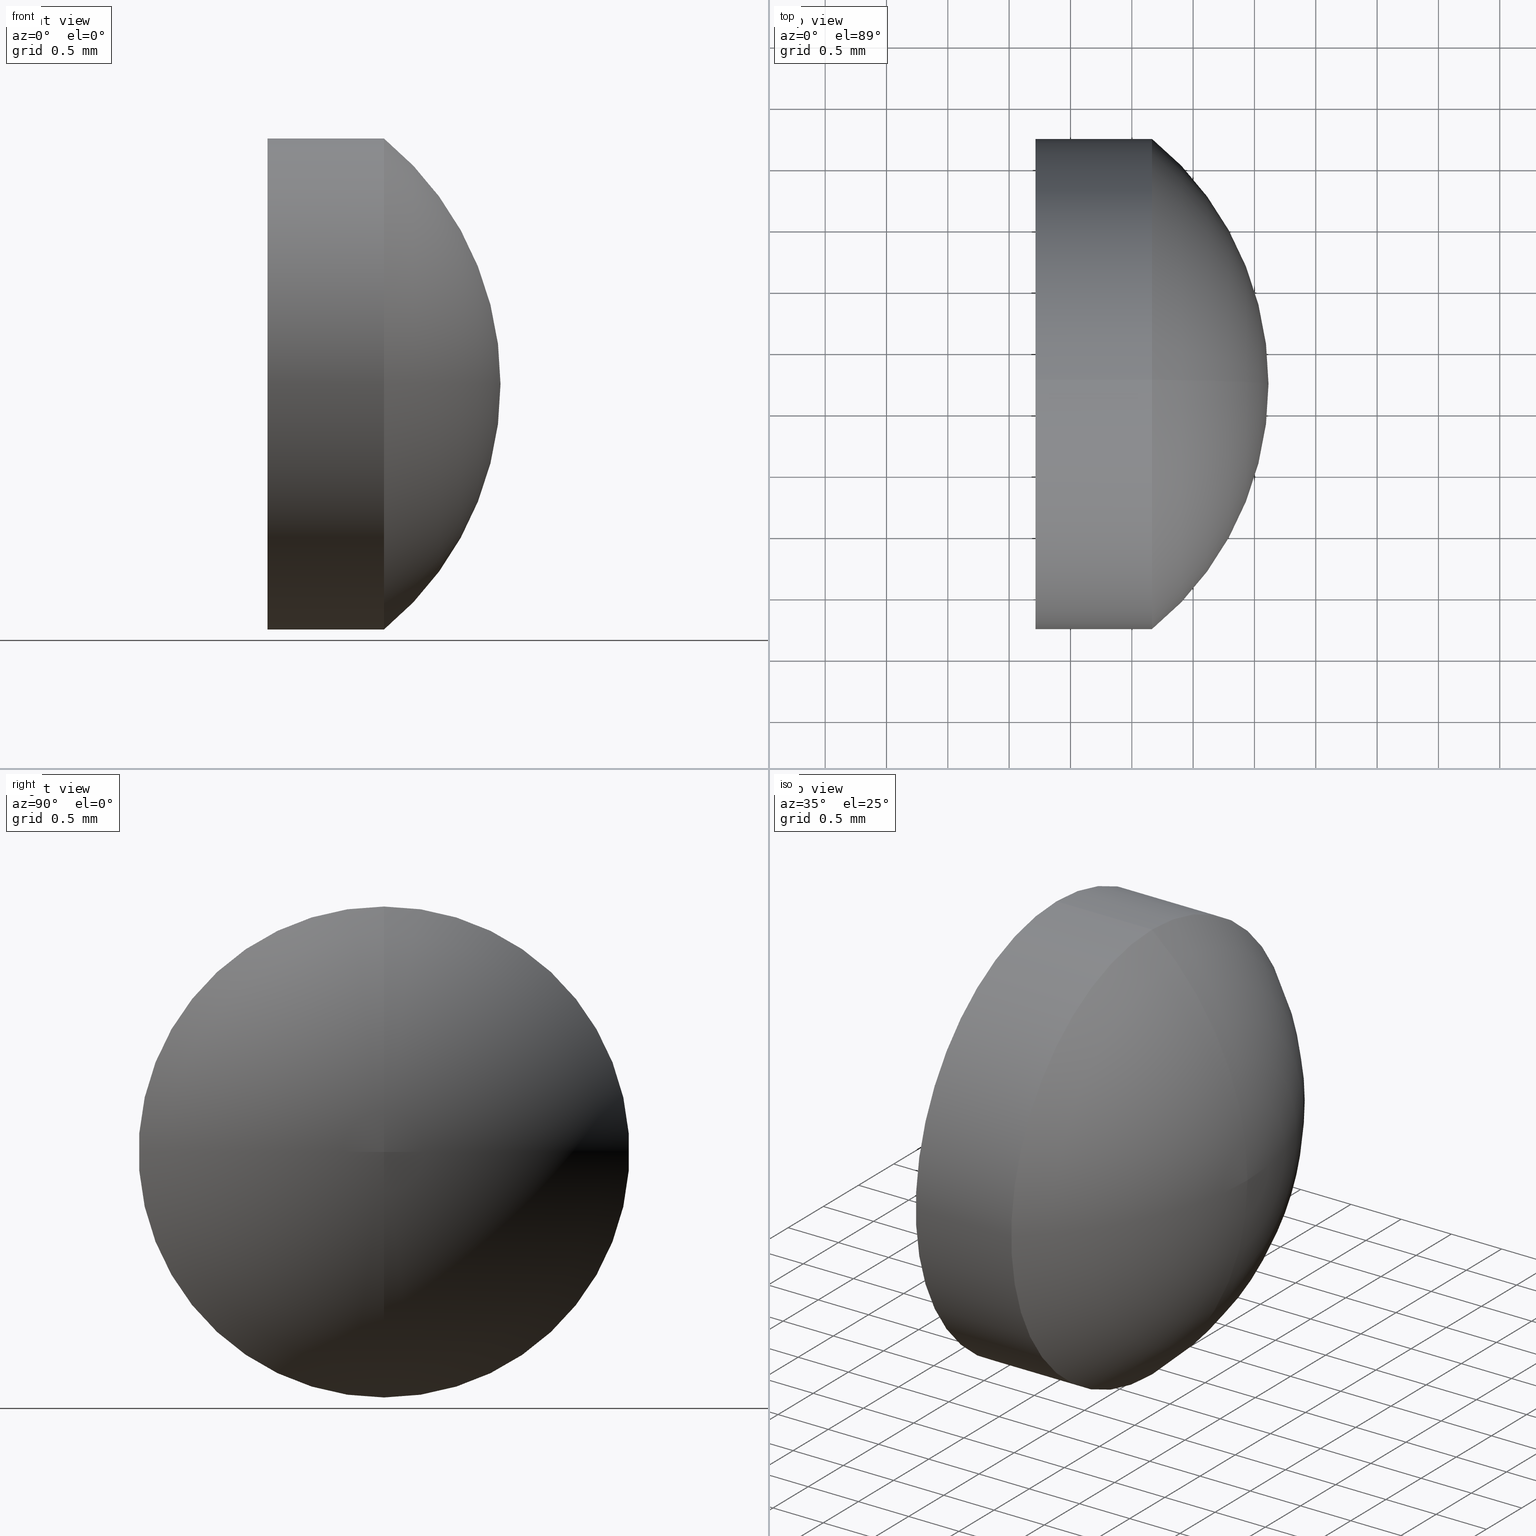
[diagram: canonical four-view strip — front | top / right | iso, engineering-drawing reading convention]
A machine part, canonical four-view strip (front | top / right | iso — engineering-drawing reading convention). The complete STEP part file that produces these views, byte-faithful:
ISO-10303-21;
HEADER;
FILE_DESCRIPTION (( 'STEP AP214' ),
    '1' );
FILE_NAME ('100174.STEP',
    '2019-05-17T07:43:43',
    ( '' ),
    ( '' ),
    'SwSTEP 2.0',
    'SolidWorks 2016',
    '' );
FILE_SCHEMA (( 'AUTOMOTIVE_DESIGN' ));
ENDSEC;

DATA;
#1 = CYLINDRICAL_SURFACE ( 'NONE', #136, 2.001348738342852300 ) ;
#2 = AXIS2_PLACEMENT_3D ( 'NONE', #134, #108, #67 ) ;
#3 = ADVANCED_FACE ( 'NONE', ( #72 ), #1, .T. ) ;
#4 = LINE ( 'NONE', #83, #10 ) ;
#5 = STYLED_ITEM ( 'NONE', ( #155 ), #52 ) ;
#6 = SURFACE_STYLE_USAGE ( .BOTH. , #127 ) ;
#7 = DIRECTION ( 'NONE',  ( 0.0000000000000000000, 0.0000000000000000000, -1.000000000000000000 ) ) ;
#8 = CLOSED_SHELL ( 'NONE', ( #3, #91, #124, #17, #54 ) ) ;
#9 = DIRECTION ( 'NONE',  ( 1.000000000000000000, 0.0000000000000000000, 0.0000000000000000000 ) ) ;
#10 = VECTOR ( 'NONE', #105, 1000.000000000000000 ) ;
#11 = MECHANICAL_DESIGN_GEOMETRIC_PRESENTATION_REPRESENTATION (  '', ( #139 ), #70 ) ;
#12 = EDGE_CURVE ( 'NONE', #79, #28, #96, .T. ) ;
#13 = PRODUCT_DEFINITION_SHAPE ( 'NONE', 'NONE',  #97 ) ;
#14 = DIRECTION ( 'NONE',  ( 0.0000000000000000000, 0.0000000000000000000, 1.000000000000000000 ) ) ;
#15 = ORIENTED_EDGE ( 'NONE', *, *, #143, .T. ) ;
#16 = FILL_AREA_STYLE_COLOUR ( '', #34 ) ;
#17 = ADVANCED_FACE ( 'NONE', ( #60 ), #126, .T. ) ;
#18 =( LENGTH_UNIT ( ) NAMED_UNIT ( * ) SI_UNIT ( .MILLI., .METRE. ) );
#19 = PRODUCT ( '100174', '100174', '', ( #102 ) ) ;
#20 = DIRECTION ( 'NONE',  ( 1.000000000000000000, 0.0000000000000000000, 0.0000000000000000000 ) ) ;
#21 = PRESENTATION_LAYER_ASSIGNMENT (  '', '', ( #139 ) ) ;
#22 = APPLICATION_CONTEXT ( 'automotive_design' ) ;
#23 = ORIENTED_EDGE ( 'NONE', *, *, #152, .T. ) ;
#24 = DIRECTION ( 'NONE',  ( 0.0000000000000000000, 0.0000000000000000000, 1.000000000000000000 ) ) ;
#25 =( NAMED_UNIT ( * ) PLANE_ANGLE_UNIT ( ) SI_UNIT ( $, .RADIAN. ) );
#26 = AXIS2_PLACEMENT_3D ( 'NONE', #66, #161, #45 ) ;
#27 = VECTOR ( 'NONE', #74, 1000.000000000000000 ) ;
#28 = VERTEX_POINT ( 'NONE', #141 ) ;
#29 = UNCERTAINTY_MEASURE_WITH_UNIT (LENGTH_MEASURE( 1.000000000000000100E-005 ), #162, 'distance_accuracy_value', 'NONE');
#30 = AXIS2_PLACEMENT_3D ( 'NONE', #63, #156, #77 ) ;
#31 = PRODUCT_DEFINITION_CONTEXT ( 'detailed design', #118, 'design' ) ;
#32 = AXIS2_PLACEMENT_3D ( 'NONE', #103, #65, #41 ) ;
#33 = DIRECTION ( 'NONE',  ( 0.0000000000000000000, 0.0000000000000000000, 1.000000000000000000 ) ) ;
#34 = COLOUR_RGB ( '',1.000000000000000000, 1.000000000000000000, 1.000000000000000000 ) ;
#35 = ORIENTED_EDGE ( 'NONE', *, *, #111, .T. ) ;
#36 = FACE_OUTER_BOUND ( 'NONE', #90, .T. ) ;
#37 = AXIS2_PLACEMENT_3D ( 'NONE', #119, #133, #78 ) ;
#38 = DIRECTION ( 'NONE',  ( -1.000000000000000000, -0.0000000000000000000, -0.0000000000000000000 ) ) ;
#39 = ORIENTED_EDGE ( 'NONE', *, *, #46, .F. ) ;
#40 = DIRECTION ( 'NONE',  ( 0.0000000000000000000, 0.0000000000000000000, 1.000000000000000000 ) ) ;
#41 = DIRECTION ( 'NONE',  ( 0.0000000000000000000, 0.0000000000000000000, 1.000000000000000000 ) ) ;
#42 =( LENGTH_UNIT ( ) NAMED_UNIT ( * ) SI_UNIT ( .MILLI., .METRE. ) );
#43 = EDGE_LOOP ( 'NONE', ( #23, #35, #58, #39 ) ) ;
#44 = CIRCLE ( 'NONE', #30, 2.001348738342852300 ) ;
#45 = DIRECTION ( 'NONE',  ( 0.0000000000000000000, 0.0000000000000000000, -1.000000000000000000 ) ) ;
#46 = EDGE_CURVE ( 'NONE', #28, #71, #151, .T. ) ;
#47 =( GEOMETRIC_REPRESENTATION_CONTEXT ( 3 ) GLOBAL_UNCERTAINTY_ASSIGNED_CONTEXT ( ( #29 ) ) GLOBAL_UNIT_ASSIGNED_CONTEXT ( ( #162, #25, #82 ) ) REPRESENTATION_CONTEXT ( 'NONE', 'WORKASPACE' ) );
#48 = SHAPE_DEFINITION_REPRESENTATION ( #13, #80 ) ;
#49 = ORIENTED_EDGE ( 'NONE', *, *, #53, .F. ) ;
#50 = EDGE_LOOP ( 'NONE', ( #149, #51, #153, #49 ) ) ;
#51 = ORIENTED_EDGE ( 'NONE', *, *, #12, .T. ) ;
#52 = MANIFOLD_SOLID_BREP ( '��ת2', #8 ) ;
#53 = EDGE_CURVE ( 'NONE', #110, #71, #44, .T. ) ;
#54 = ADVANCED_FACE ( 'NONE', ( #36 ), #92, .F. ) ;
#55 = AXIS2_PLACEMENT_3D ( 'NONE', #95, #121, #24 ) ;
#56 = FILL_AREA_STYLE ('',( #68 ) ) ;
#57 = APPLICATION_PROTOCOL_DEFINITION ( 'draft international standard', 'automotive_design', 1998, #118 ) ;
#58 = ORIENTED_EDGE ( 'NONE', *, *, #143, .F. ) ;
#59 = CARTESIAN_POINT ( 'NONE',  ( 386.6647637488533200, -62.77572471947115700, 0.0000000000000000000 ) ) ;
#60 = FACE_OUTER_BOUND ( 'NONE', #50, .T. ) ;
#61 = AXIS2_PLACEMENT_3D ( 'NONE', #59, #69, #164 ) ;
#62 = TOROIDAL_SURFACE ( 'NONE', #55, 0.001348738342871191900, 2.580263157894727900 ) ;
#63 = CARTESIAN_POINT ( 'NONE',  ( 385.7147637488533300, -62.77572471947115700, 0.0000000000000000000 ) ) ;
#64 = SURFACE_STYLE_USAGE ( .BOTH. , #84 ) ;
#65 = DIRECTION ( 'NONE',  ( -1.000000000000000000, -0.0000000000000000000, -0.0000000000000000000 ) ) ;
#66 = CARTESIAN_POINT ( 'NONE',  ( 385.0345005909586000, -62.77572471947115700, 0.001348738342871191900 ) ) ;
#67 = DIRECTION ( 'NONE',  ( 0.0000000000000000000, 0.0000000000000000000, 1.000000000000000000 ) ) ;
#68 = FILL_AREA_STYLE_COLOUR ( '', #85 ) ;
#69 = DIRECTION ( 'NONE',  ( -1.000000000000000000, -0.0000000000000000000, -0.0000000000000000000 ) ) ;
#70 =( GEOMETRIC_REPRESENTATION_CONTEXT ( 3 ) GLOBAL_UNCERTAINTY_ASSIGNED_CONTEXT ( ( #160 ) ) GLOBAL_UNIT_ASSIGNED_CONTEXT ( ( #42, #132, #117 ) ) REPRESENTATION_CONTEXT ( 'NONE', 'WORKASPACE' ) );
#71 = VERTEX_POINT ( 'NONE', #93 ) ;
#72 = FACE_OUTER_BOUND ( 'NONE', #43, .T. ) ;
#73 = CIRCLE ( 'NONE', #26, 2.580263157894727900 ) ;
#74 = DIRECTION ( 'NONE',  ( -1.000000000000000000, -0.0000000000000000000, -0.0000000000000000000 ) ) ;
#75 = ORIENTED_EDGE ( 'NONE', *, *, #104, .F. ) ;
#76 = CARTESIAN_POINT ( 'NONE',  ( 385.0345005909586000, -62.77572471947115700, 0.0000000000000000000 ) ) ;
#77 = DIRECTION ( 'NONE',  ( 0.0000000000000000000, 0.0000000000000000000, 1.000000000000000000 ) ) ;
#78 = DIRECTION ( 'NONE',  ( 0.0000000000000000000, 0.0000000000000000000, 1.000000000000000000 ) ) ;
#79 = VERTEX_POINT ( 'NONE', #89 ) ;
#80 = ADVANCED_BREP_SHAPE_REPRESENTATION ( '100174', ( #52, #116 ), #47 ) ;
#81 = CARTESIAN_POINT ( 'NONE',  ( 385.7147637488533300, -62.77572471947115700, -2.001348738342852300 ) ) ;
#82 =( NAMED_UNIT ( * ) SI_UNIT ( $, .STERADIAN. ) SOLID_ANGLE_UNIT ( ) );
#83 = CARTESIAN_POINT ( 'NONE',  ( 385.3161618597546900, -62.77572471947115700, -2.001348738342852300 ) ) ;
#84 = SURFACE_SIDE_STYLE ('',( #166 ) ) ;
#85 = COLOUR_RGB ( '',1.000000000000000000, 1.000000000000000000, 1.000000000000000000 ) ;
#86 = EDGE_LOOP ( 'NONE', ( #75, #122, #114 ) ) ;
#87 = SURFACE_STYLE_FILL_AREA ( #158 ) ;
#88 =( GEOMETRIC_REPRESENTATION_CONTEXT ( 3 ) GLOBAL_UNCERTAINTY_ASSIGNED_CONTEXT ( ( #142 ) ) GLOBAL_UNIT_ASSIGNED_CONTEXT ( ( #18, #130, #100 ) ) REPRESENTATION_CONTEXT ( 'NONE', 'WORKASPACE' ) );
#89 = CARTESIAN_POINT ( 'NONE',  ( 386.6647637488533200, -62.77572471947115700, -2.001348738342863400 ) ) ;
#90 = EDGE_LOOP ( 'NONE', ( #15, #137 ) ) ;
#91 = ADVANCED_FACE ( 'NONE', ( #99 ), #106, .T. ) ;
#92 = PLANE ( 'NONE',  #157 ) ;
#93 = CARTESIAN_POINT ( 'NONE',  ( 385.7147637488533300, -62.77572471947115700, 2.001348738342852300 ) ) ;
#94 = CARTESIAN_POINT ( 'NONE',  ( 0.0000000000000000000, 0.0000000000000000000, 0.0000000000000000000 ) ) ;
#95 = CARTESIAN_POINT ( 'NONE',  ( 385.0345005909586000, -62.77572471947115700, 0.0000000000000000000 ) ) ;
#96 = CIRCLE ( 'NONE', #32, 2.001348738342852300 ) ;
#97 = PRODUCT_DEFINITION ( 'δ֪', '', #101, #31 ) ;
#98 = CIRCLE ( 'NONE', #2, 2.001348738342852300 ) ;
#99 = FACE_OUTER_BOUND ( 'NONE', #86, .T. ) ;
#100 =( NAMED_UNIT ( * ) SI_UNIT ( $, .STERADIAN. ) SOLID_ANGLE_UNIT ( ) );
#101 = PRODUCT_DEFINITION_FORMATION_WITH_SPECIFIED_SOURCE ( '�κ�', '', #19, .NOT_KNOWN. ) ;
#102 = PRODUCT_CONTEXT ( 'NONE', #22, 'mechanical' ) ;
#103 = CARTESIAN_POINT ( 'NONE',  ( 386.6647637488533200, -62.77572471947115700, 0.0000000000000000000 ) ) ;
#104 = EDGE_CURVE ( 'NONE', #109, #28, #73, .T. ) ;
#105 = DIRECTION ( 'NONE',  ( -1.000000000000000000, -0.0000000000000000000, -0.0000000000000000000 ) ) ;
#106 = TOROIDAL_SURFACE ( 'NONE', #165, 0.001348738342871191900, 2.580263157894727900 ) ;
#107 = AXIS2_PLACEMENT_3D ( 'NONE', #146, #125, #33 ) ;
#108 = DIRECTION ( 'NONE',  ( -1.000000000000000000, -0.0000000000000000000, -0.0000000000000000000 ) ) ;
#109 = VERTEX_POINT ( 'NONE', #163 ) ;
#110 = VERTEX_POINT ( 'NONE', #81 ) ;
#111 = EDGE_CURVE ( 'NONE', #79, #110, #4, .T. ) ;
#112 = PRODUCT_RELATED_PRODUCT_CATEGORY ( 'part', '', ( #19 ) ) ;
#113 = DIRECTION ( 'NONE',  ( -1.000000000000000000, -0.0000000000000000000, -0.0000000000000000000 ) ) ;
#114 = ORIENTED_EDGE ( 'NONE', *, *, #152, .F. ) ;
#115 = CARTESIAN_POINT ( 'NONE',  ( 385.3161618597546900, -62.77572471947115700, 2.001348738342852300 ) ) ;
#116 = AXIS2_PLACEMENT_3D ( 'NONE', #94, #40, #9 ) ;
#117 =( NAMED_UNIT ( * ) SI_UNIT ( $, .STERADIAN. ) SOLID_ANGLE_UNIT ( ) );
#118 = APPLICATION_CONTEXT ( 'automotive_design' ) ;
#119 = CARTESIAN_POINT ( 'NONE',  ( 385.3161618597546900, -62.77572471947115700, 0.0000000000000000000 ) ) ;
#120 = ORIENTED_EDGE ( 'NONE', *, *, #104, .T. ) ;
#121 = DIRECTION ( 'NONE',  ( -1.000000000000000000, -0.0000000000000000000, -0.0000000000000000000 ) ) ;
#122 = ORIENTED_EDGE ( 'NONE', *, *, #128, .T. ) ;
#123 = CARTESIAN_POINT ( 'NONE',  ( 385.3161618597546900, -62.77572471947115700, 0.0000000000000000000 ) ) ;
#124 = ADVANCED_FACE ( 'NONE', ( #144 ), #62, .T. ) ;
#125 = DIRECTION ( 'NONE',  ( -0.0000000000000000000, 1.000000000000000000, 1.224646799147353200E-016 ) ) ;
#126 = CYLINDRICAL_SURFACE ( 'NONE', #37, 2.001348738342852300 ) ;
#127 = SURFACE_SIDE_STYLE ('',( #87 ) ) ;
#128 = EDGE_CURVE ( 'NONE', #109, #79, #135, .T. ) ;
#129 = PRESENTATION_STYLE_ASSIGNMENT (( #64 ) ) ;
#130 =( NAMED_UNIT ( * ) PLANE_ANGLE_UNIT ( ) SI_UNIT ( $, .RADIAN. ) );
#131 = APPLICATION_PROTOCOL_DEFINITION ( 'draft international standard', 'automotive_design', 1998, #22 ) ;
#132 =( NAMED_UNIT ( * ) PLANE_ANGLE_UNIT ( ) SI_UNIT ( $, .RADIAN. ) );
#133 = DIRECTION ( 'NONE',  ( -1.000000000000000000, -0.0000000000000000000, -0.0000000000000000000 ) ) ;
#134 = CARTESIAN_POINT ( 'NONE',  ( 385.7147637488533300, -62.77572471947115700, 0.0000000000000000000 ) ) ;
#135 = CIRCLE ( 'NONE', #107, 2.580263157894727900 ) ;
#136 = AXIS2_PLACEMENT_3D ( 'NONE', #123, #113, #140 ) ;
#137 = ORIENTED_EDGE ( 'NONE', *, *, #53, .T. ) ;
#138 = CIRCLE ( 'NONE', #61, 2.001348738342852300 ) ;
#139 = STYLED_ITEM ( 'NONE', ( #129 ), #80 ) ;
#140 = DIRECTION ( 'NONE',  ( 0.0000000000000000000, 0.0000000000000000000, 1.000000000000000000 ) ) ;
#141 = CARTESIAN_POINT ( 'NONE',  ( 386.6647637488533200, -62.77572471947115700, 2.001348738342863400 ) ) ;
#142 = UNCERTAINTY_MEASURE_WITH_UNIT (LENGTH_MEASURE( 1.000000000000000100E-005 ), #18, 'distance_accuracy_value', 'NONE');
#143 = EDGE_CURVE ( 'NONE', #71, #110, #98, .T. ) ;
#144 = FACE_OUTER_BOUND ( 'NONE', #159, .T. ) ;
#145 = PRESENTATION_LAYER_ASSIGNMENT (  '', '', ( #5 ) ) ;
#146 = CARTESIAN_POINT ( 'NONE',  ( 385.0345005909586000, -62.77572471947115700, -0.001348738342871191900 ) ) ;
#147 = ORIENTED_EDGE ( 'NONE', *, *, #12, .F. ) ;
#148 = ORIENTED_EDGE ( 'NONE', *, *, #128, .F. ) ;
#149 = ORIENTED_EDGE ( 'NONE', *, *, #111, .F. ) ;
#150 = MECHANICAL_DESIGN_GEOMETRIC_PRESENTATION_REPRESENTATION (  '', ( #5 ), #88 ) ;
#151 = LINE ( 'NONE', #115, #27 ) ;
#152 = EDGE_CURVE ( 'NONE', #28, #79, #138, .T. ) ;
#153 = ORIENTED_EDGE ( 'NONE', *, *, #46, .T. ) ;
#154 = CARTESIAN_POINT ( 'NONE',  ( 385.7147637488533300, -62.77572471947115700, 0.0000000000000000000 ) ) ;
#155 = PRESENTATION_STYLE_ASSIGNMENT (( #6 ) ) ;
#156 = DIRECTION ( 'NONE',  ( -1.000000000000000000, -0.0000000000000000000, -0.0000000000000000000 ) ) ;
#157 = AXIS2_PLACEMENT_3D ( 'NONE', #154, #20, #7 ) ;
#158 = FILL_AREA_STYLE ('',( #16 ) ) ;
#159 = EDGE_LOOP ( 'NONE', ( #148, #120, #147 ) ) ;
#160 = UNCERTAINTY_MEASURE_WITH_UNIT (LENGTH_MEASURE( 1.000000000000000100E-005 ), #42, 'distance_accuracy_value', 'NONE');
#161 = DIRECTION ( 'NONE',  ( 0.0000000000000000000, -1.000000000000000000, 0.0000000000000000000 ) ) ;
#162 =( LENGTH_UNIT ( ) NAMED_UNIT ( * ) SI_UNIT ( .MILLI., .METRE. ) );
#163 = CARTESIAN_POINT ( 'NONE',  ( 387.6147633963514600, -62.77572471947115700, 0.0000000000000000000 ) ) ;
#164 = DIRECTION ( 'NONE',  ( 0.0000000000000000000, 0.0000000000000000000, 1.000000000000000000 ) ) ;
#165 = AXIS2_PLACEMENT_3D ( 'NONE', #76, #38, #14 ) ;
#166 = SURFACE_STYLE_FILL_AREA ( #56 ) ;
ENDSEC;
END-ISO-10303-21;
